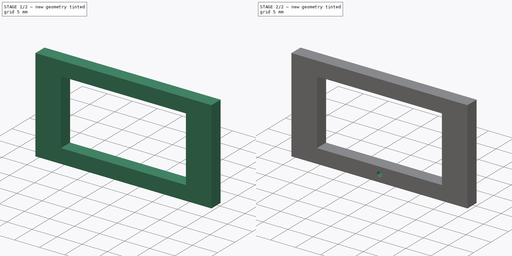
[diagram: build sequence overview — one tinted view per stage of 2, left to right]
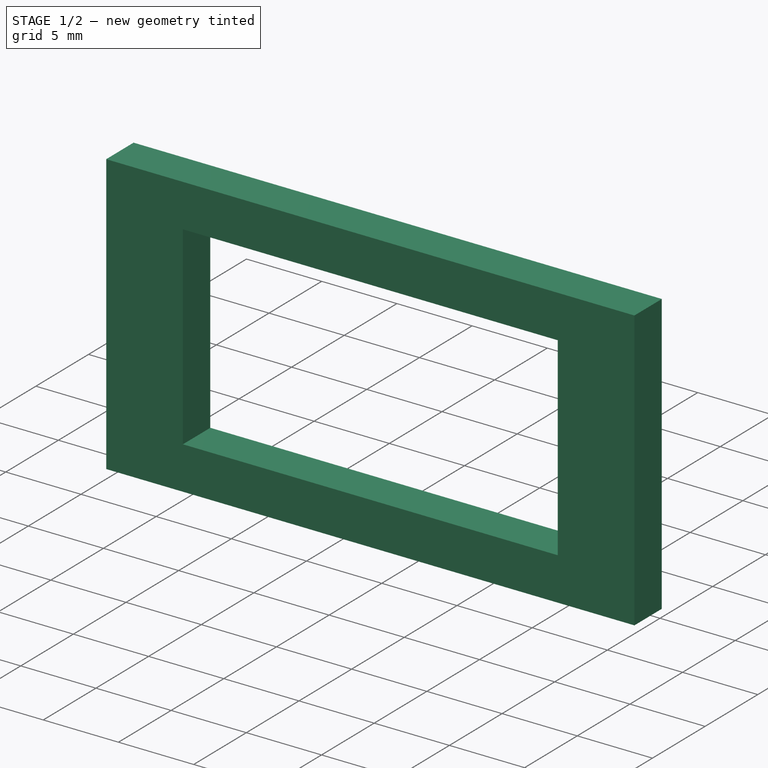
[diagram: stage 1 of 2 — iso view after this stage's code; geometry added in this stage tinted green]
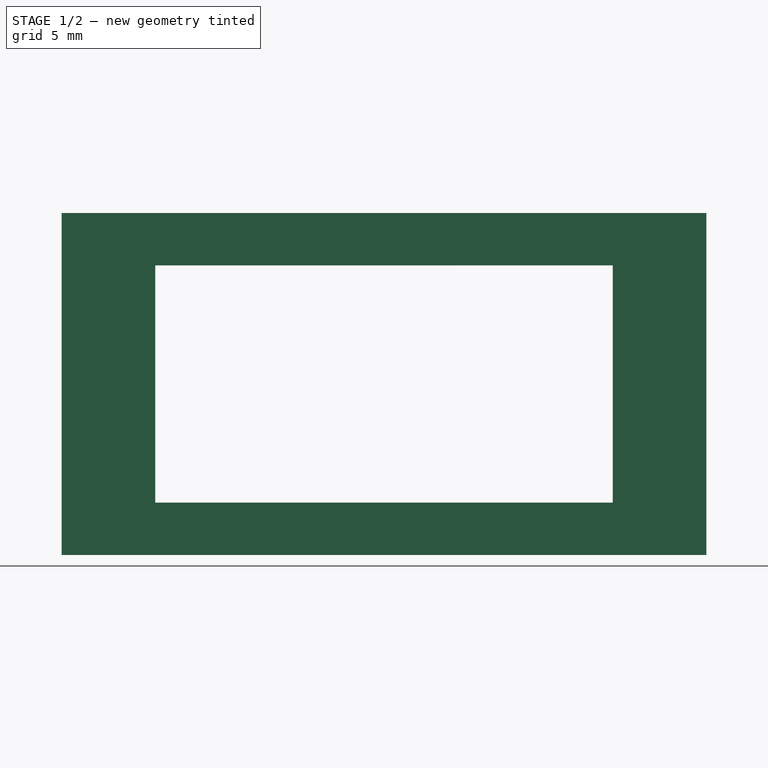
[diagram: stage 1 of 2 — front view after this stage's code; geometry added in this stage tinted green]
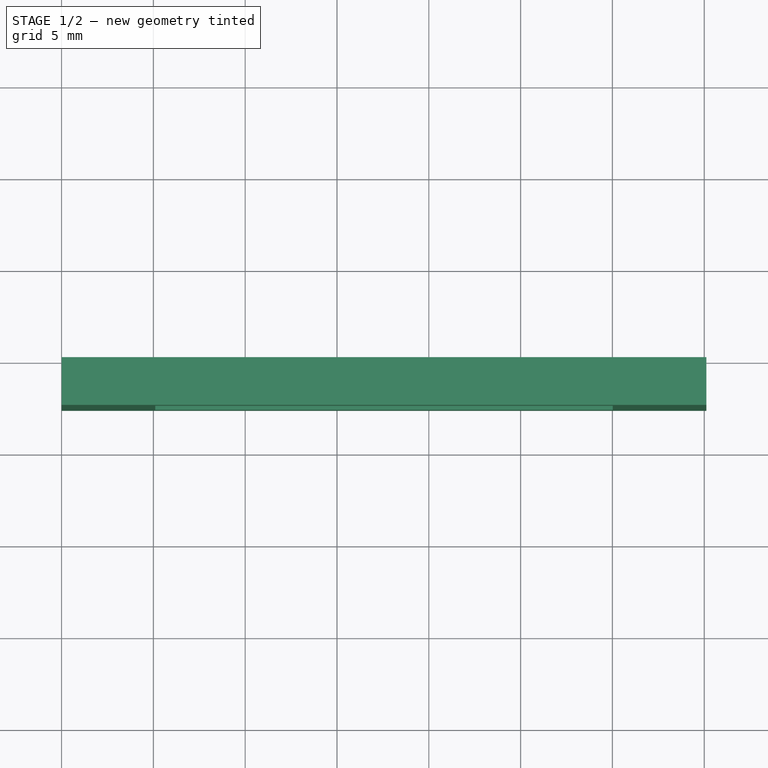
[diagram: stage 1 of 2 — top view after this stage's code; geometry added in this stage tinted green]
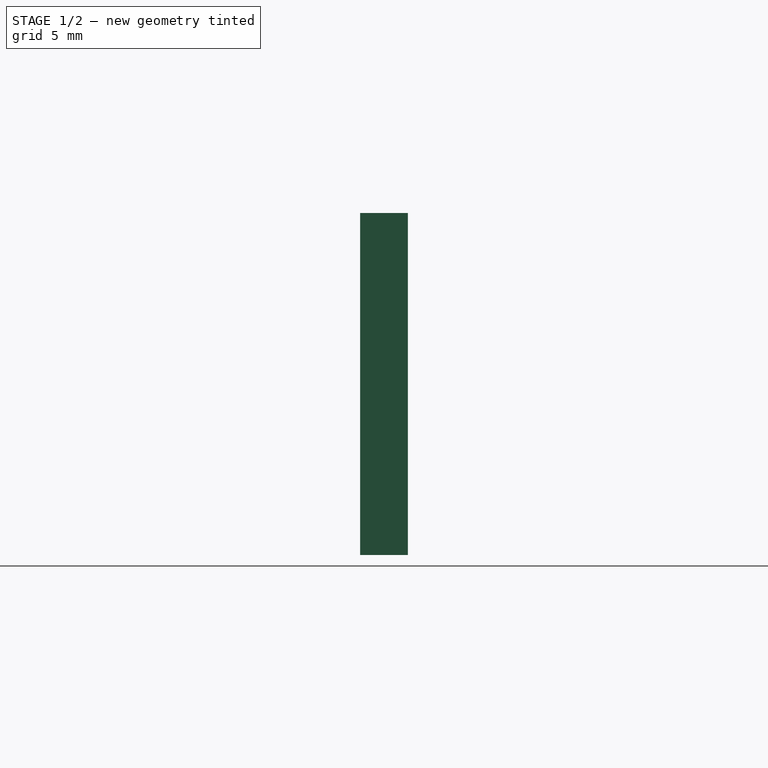
[diagram: stage 1 of 2 — right view after this stage's code; geometry added in this stage tinted green]
FCSTD DOCUMENT  (FreeCAD 0.19R)
Label: bracket-9-3
License: All rights reserved
LicenseURL: http://en.wikipedia.org/wiki/All_rights_reserved
objects: Sketcher::SketchObject×3, PartDesign::Pocket×2, PartDesign::Pad×1, PartDesign::Body×1
note: 10 computed .brp shape members not serialized (recipe doc carries the construction recipe); baked Part::Feature solids carry a one-line shape summary decoded from their .brp

FEATURE [Sketcher::SketchObject] Sketch
  FullyConstrained = true
  MapMode = 5
  Placement = pos=(0,0,0) rot=(1,0,0;1.5708rad)
  Support = -> [XZ_Plane]
  sketch-geometry (4):
    g0: LineSegment StartX=0 StartY=0 StartZ=0 EndX=35.12 EndY=0 EndZ=0
    g1: LineSegment StartX=35.12 StartY=0 StartZ=0 EndX=35.12 EndY=18.62 EndZ=0
    g2: LineSegment StartX=35.12 StartY=18.62 StartZ=0 EndX=0 EndY=18.62 EndZ=0
    g3: LineSegment StartX=0 StartY=18.62 StartZ=0 EndX=0 EndY=0 EndZ=0
  constraints (11):
    c: Coincident(g0,g1)
    c: Coincident(g1,g2)
    c: Coincident(g2,g3)
    c: Coincident(g3,g0)
    c: Horizontal(g0)
    c: Horizontal(g2)
    c: Vertical(g1)
    c: Vertical(g3)
    c: Coincident(g0,g-1)
    c: Distance(g1) = 18.62
    c: Distance(g2) = 35.12
FEATURE [PartDesign::Pad] Pad
  Direction = (1,1,1)
  Length = 2.6
  Length2 = 100
  Placement = pos=(0,0,0) rot=(1,0,0;1.5708rad)
  Profile = -> Sketch
  Type = 0
FEATURE [Sketcher::SketchObject] Sketch002
  ExternalGeometry = -> [Pad]
  FullyConstrained = false
  MapMode = 5
  Placement = pos=(0,-2.6,-6e-16) rot=(1,0,0;1.5708rad)
  Support = -> [Pad]
  sketch-geometry (4):
    g0: LineSegment StartX=5.1 StartY=15.77 StartZ=0 EndX=30.02 EndY=15.77 EndZ=0
    g1: LineSegment StartX=30.02 StartY=2.85 StartZ=0 EndX=5.1 EndY=2.85 EndZ=0
    g2: LineSegment StartX=5.1 StartY=2.85 StartZ=0 EndX=5.1 EndY=15.77 EndZ=0
    g3: LineSegment StartX=30.02 StartY=15.77 StartZ=0 EndX=30.02 EndY=2.85 EndZ=0
  constraints (10):
    c: Coincident(g1,g2)
    c: Coincident(g2,g0)
    c: Horizontal(g0)
    c: Horizontal(g1)
    c: Vertical(g2)
    c: DistanceX(g0,g0) = 24.92
    c: DistanceY(g1,g0) = 12.92
    c: Coincident(g3,g0)
    c: Coincident(g3,g1)
    c: Vertical(g3)
FEATURE [PartDesign::Pocket] Pocket
  BaseFeature = -> Pad
  Length = 2.6
  Length2 = 100
  Placement = pos=(0,0,0) rot=(1,0,0;1.5708rad)
  Profile = -> Sketch002
  Type = 0
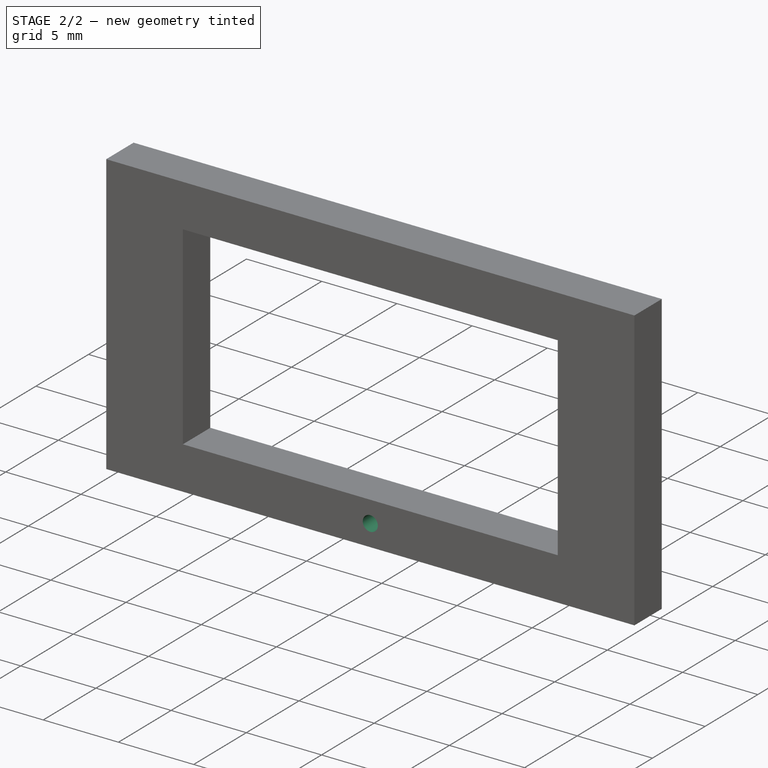
[diagram: stage 2 of 2 — iso view after this stage's code; geometry added in this stage tinted green]
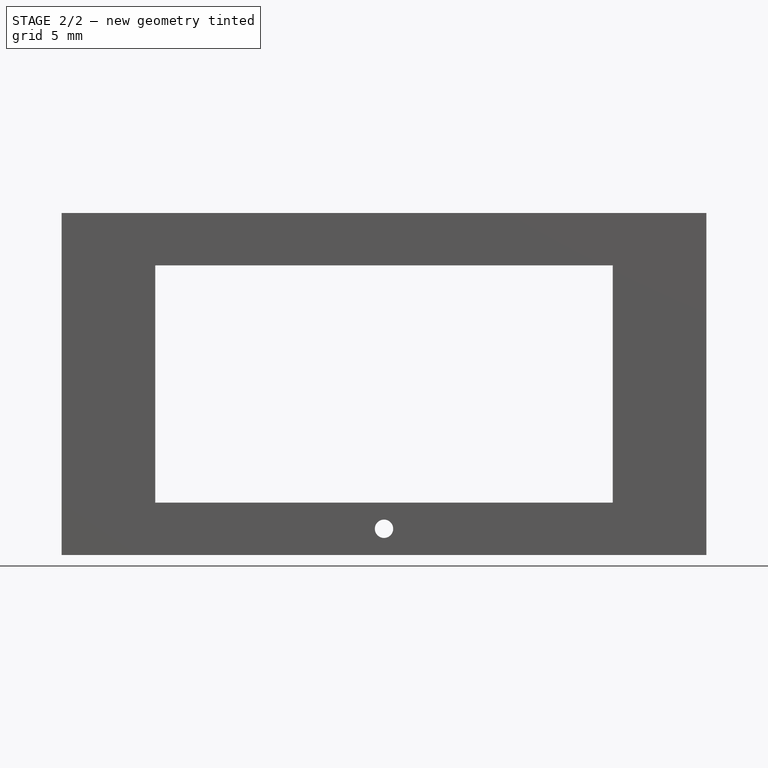
[diagram: stage 2 of 2 — front view after this stage's code; geometry added in this stage tinted green]
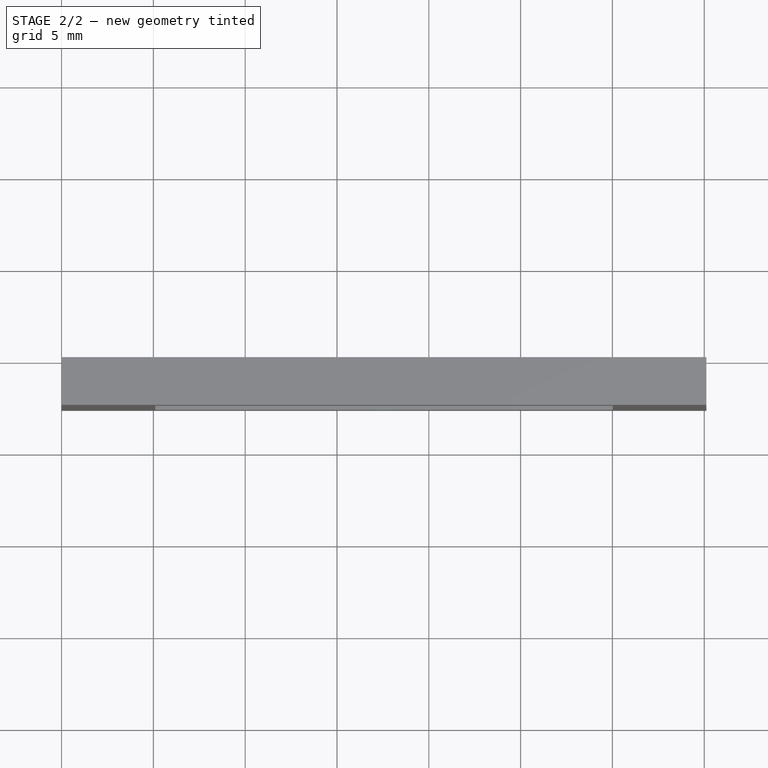
[diagram: stage 2 of 2 — top view after this stage's code; geometry added in this stage tinted green]
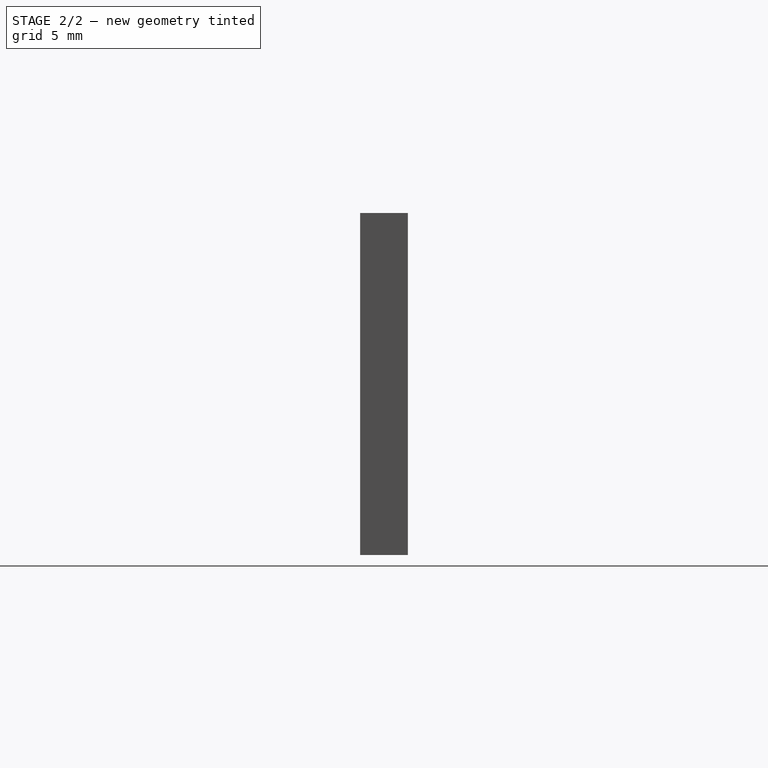
[diagram: stage 2 of 2 — right view after this stage's code; geometry added in this stage tinted green]
FEATURE [Sketcher::SketchObject] Sketch003
  ExternalGeometry = -> [Pocket]
  FullyConstrained = false
  MapMode = 5
  Placement = pos=(0,0,0) rot=(-1,0,0;1.5708rad)
  Support = -> [Pocket]
  sketch-geometry (5):
    g0: LineSegment StartX=26.9487 StartY=-6.79406 StartZ=0 EndX=28.9587 EndY=-6.79406 EndZ=0
    g1: LineSegment StartX=28.9587 StartY=-6.79406 StartZ=0 EndX=28.9587 EndY=-10.2941 EndZ=0
    g2: LineSegment StartX=28.9587 StartY=-10.2941 StartZ=0 EndX=26.9487 EndY=-10.2941 EndZ=0
    g3: LineSegment StartX=26.9487 StartY=-10.2941 StartZ=0 EndX=26.9487 EndY=-6.79406 EndZ=0
    g4: Circle CenterX=17.56 CenterY=-1.425 CenterZ=0 NormalX=0 NormalY=0 NormalZ=1 AngleXU=0 Radius=0.5
  constraints (17):
    c: Coincident(g0,g1)
    c: Coincident(g1,g2)
    c: Coincident(g2,g3)
    c: Coincident(g3,g0)
    c: Horizontal(g0)
    c: Horizontal(g2)
    c: Vertical(g1)
    c: Vertical(g3)
    c: DistanceY(g1,g1) = 3.5
    c: DistanceX(g0,g0) = 2.01
    c: Distance(g-4) = 24.92
    c: Distance(g-3) = 12.92
    c: DistanceX(g-1,g-3) = 30.02
    c: DistanceY(g-3,g-1) = 2.85
    c: Radius(g4) = 0.5
    c: DistanceY(g-3,g4) = 1.425
    c: DistanceX(g-4,g4) = 12.46
FEATURE [PartDesign::Pocket] Pocket001
  BaseFeature = -> Pocket
  Length = 5
  Length2 = 100
  Placement = pos=(0,0,0) rot=(1,0,0;1.5708rad)
  Profile = -> Sketch003
  Type = 0
FEATURE [PartDesign::Body] Body
  Group = -> [Sketch,Pad,Sketch002,Pocket,Sketch003,Pocket001]
  Origin = -> Origin
  Tip = -> Pocket001
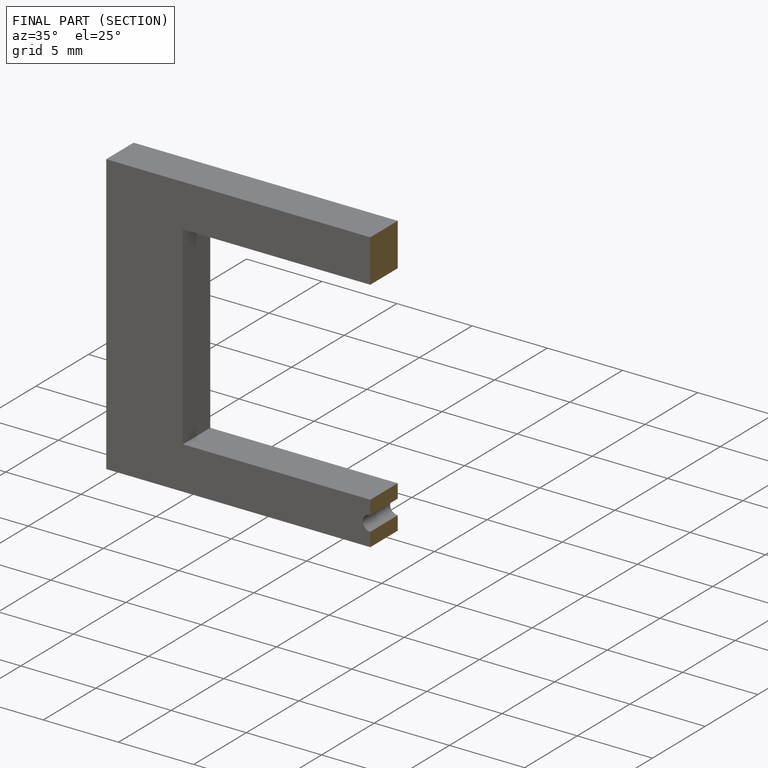
[diagram: finished part — half-section view (interior)]
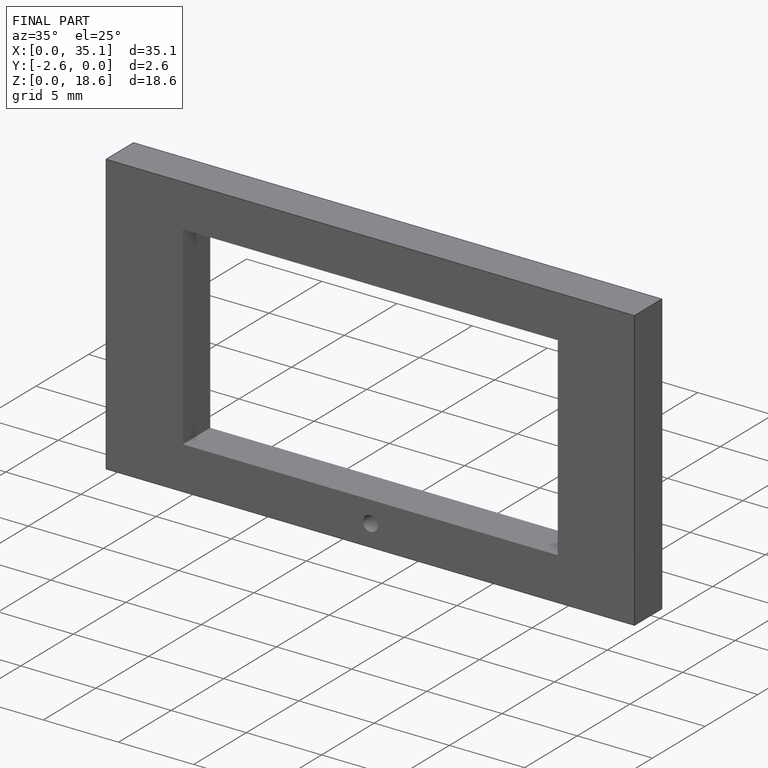
[diagram: finished part — iso view with bounding-box wireframe]
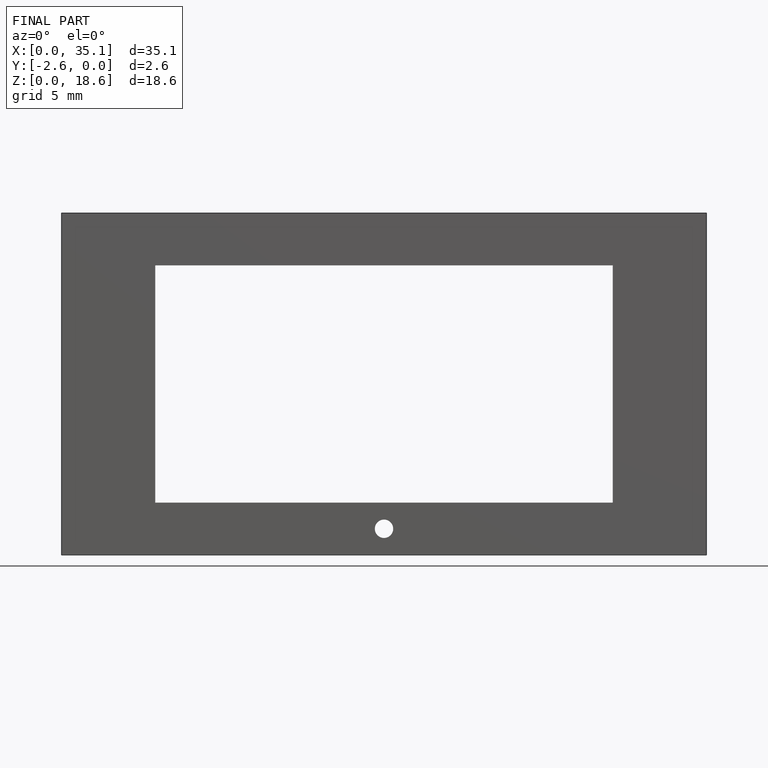
[diagram: finished part — front view with bounding-box wireframe]
